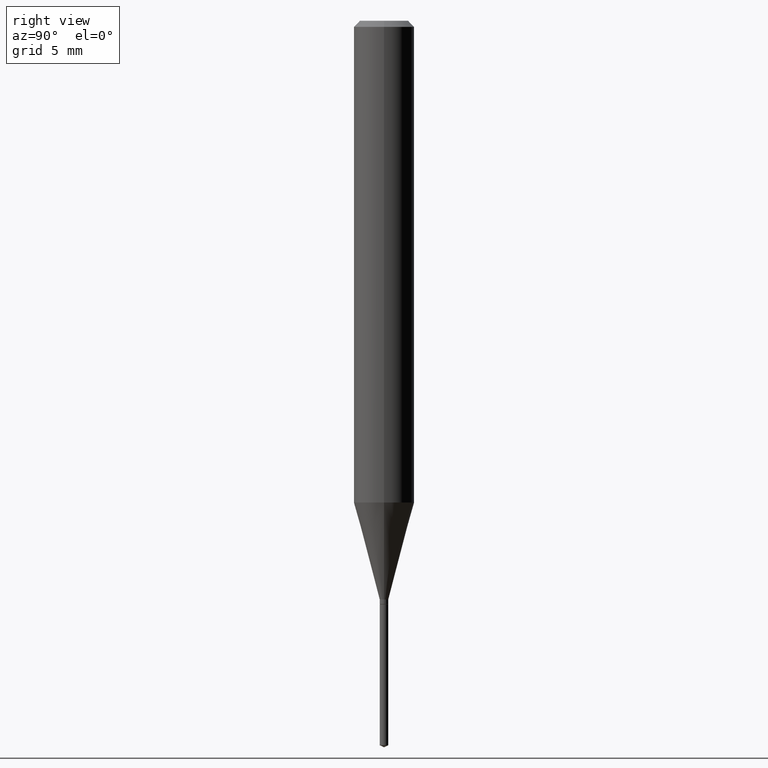
[diagram: clean part render]
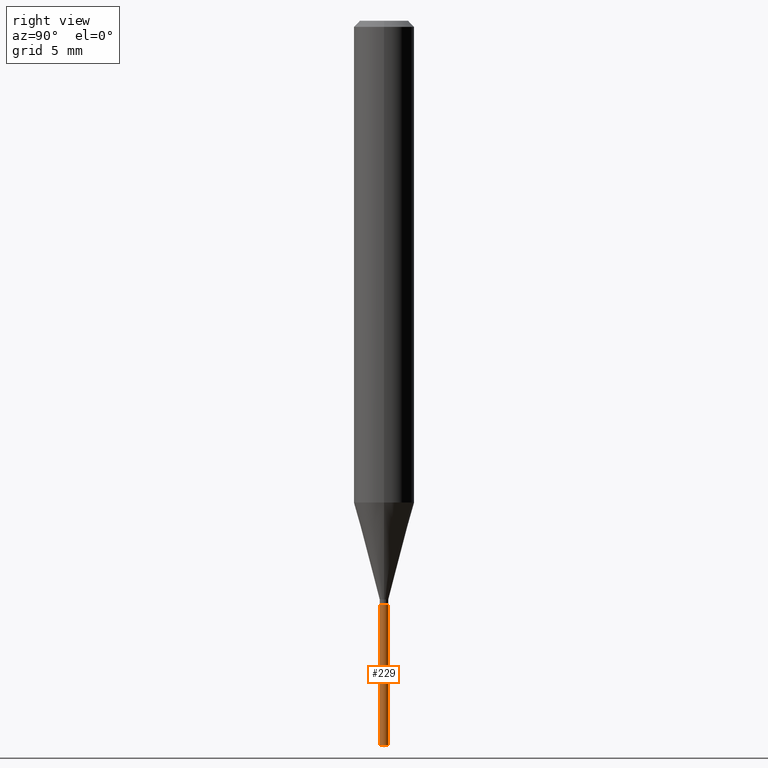
[diagram: same view with one face highlighted and labeled with its STEP entity id]
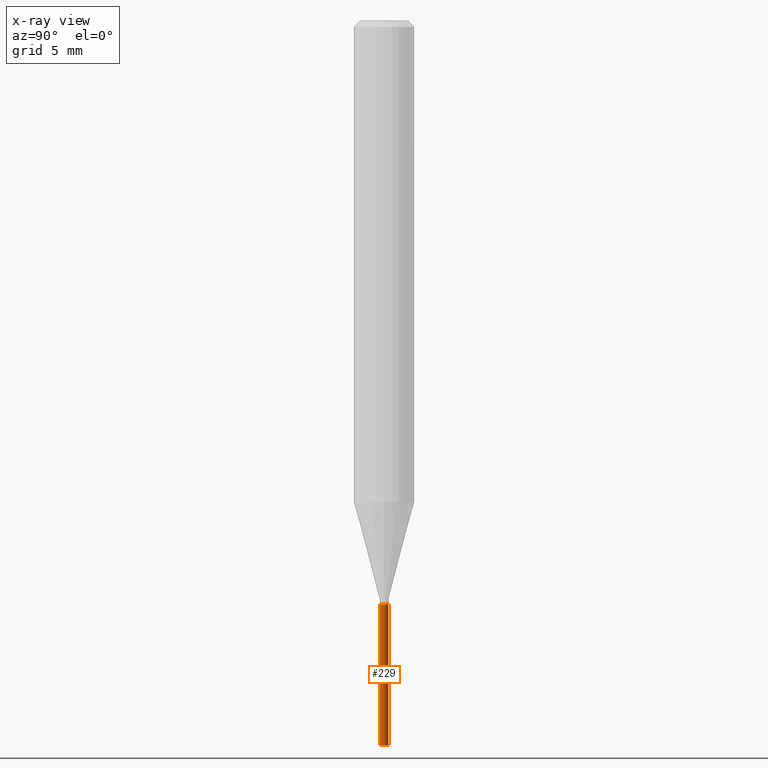
[diagram: x-ray of the same camera — body ghosted, the highlighted face saturated]
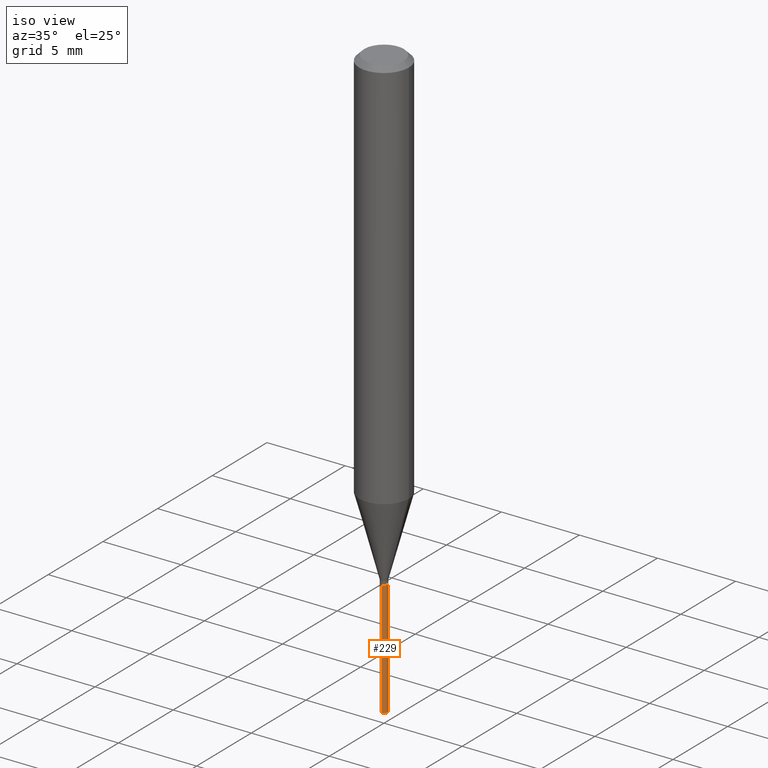
[diagram: same view with one face highlighted and labeled with its STEP entity id]
A machine part, right view. The second image highlights one B-rep face of the part: STEP entity #229.
The next image is the same camera in x-ray: the body ghosted, the highlighted face saturated — about 0% of this face is hidden behind the body in this view.
A second angle (iso view) of the same face is appended — the face is thin or edge-on in the first view.
In plain terms, the highlighted cylindrical surface (edge-blend (fillet) strip) has radius 0.2248 mm, axis along (-0, 0, 1).
Its self-contained STEP definition (entity closure, byte-faithful):
#13 = EDGE_CURVE ( 'NONE', #407, #225, #275, .T. ) ;
#39 = FACE_OUTER_BOUND ( 'NONE', #134, .T. ) ;
#50 = ORIENTED_EDGE ( 'NONE', *, *, #283, .F. ) ;
#61 = DIRECTION ( 'NONE',  ( -6.982962677686265133E-15, -1.000000000000000000, 0.000000000000000000 ) ) ;
#62 = VERTEX_POINT ( 'NONE', #146 ) ;
#96 = ORIENTED_EDGE ( 'NONE', *, *, #413, .F. ) ;
#99 = CIRCLE ( 'NONE', #373, 0.008850000000000000228 ) ;
#107 = DIRECTION ( 'NONE',  ( -2.442064184349959249E-29, 3.496356951090160448E-15, 1.000000000000000000 ) ) ;
#113 = CARTESIAN_POINT ( 'NONE',  ( -6.179921969748688623E-17, -0.008850000000005225215, -1.495873177225328865 ) ) ;
#121 = LINE ( 'NONE', #277, #244 ) ;
#124 = DIRECTION ( 'NONE',  ( -2.442064184349959249E-29, 3.496356951090160448E-15, 1.000000000000000000 ) ) ;
#134 = EDGE_LOOP ( 'NONE', ( #221, #333, #96, #50 ) ) ;
#137 = CARTESIAN_POINT ( 'NONE',  ( 6.288303211480542684E-17, 0.008849999999994775240, -1.495873177225328865 ) ) ;
#139 = EDGE_CURVE ( 'NONE', #225, #394, #223, .T. ) ;
#145 = CARTESIAN_POINT ( 'NONE',  ( 6.288303211480550080E-17, 0.008849999999995791788, -1.205000000000000071 ) ) ;
#146 = CARTESIAN_POINT ( 'NONE',  ( -6.179921969749398598E-17, -0.008850000000004206932, -1.205000000000000071 ) ) ;
#170 = AXIS2_PLACEMENT_3D ( 'NONE', #298, #107, #340 ) ;
#181 = CARTESIAN_POINT ( 'NONE',  ( 2.946789911453089913E-29, -4.207235013305990839E-15, -1.205000000000000071 ) ) ;
#214 = DIRECTION ( 'NONE',  ( -2.442064184349959249E-29, 3.496356951090160842E-15, 1.000000000000000000 ) ) ;
#221 = ORIENTED_EDGE ( 'NONE', *, *, #13, .T. ) ;
#222 = CARTESIAN_POINT ( 'NONE',  ( 2.946789911453089913E-29, -4.207235013305990839E-15, -1.205000000000000071 ) ) ;
#223 = LINE ( 'NONE', #421, #238 ) ;
#225 = VERTEX_POINT ( 'NONE', #137 ) ;
#229 = ADVANCED_FACE ( 'NONE', ( #39 ), #457, .T. ) ;
#238 = VECTOR ( 'NONE', #214, 39.37007874015748143 ) ;
#244 = VECTOR ( 'NONE', #346, 39.37007874015748143 ) ;
#250 = DIRECTION ( 'NONE',  ( -6.982962677686265133E-15, -1.000000000000000000, 0.000000000000000000 ) ) ;
#275 = CIRCLE ( 'NONE', #170, 0.008850000000000000228 ) ;
#277 = CARTESIAN_POINT ( 'NONE',  ( -6.179921969749398598E-17, -0.008850000000004206932, -1.205000000000000071 ) ) ;
#283 = EDGE_CURVE ( 'NONE', #407, #62, #121, .T. ) ;
#298 = CARTESIAN_POINT ( 'NONE',  ( 3.657120879743143126E-29, -5.224231468383448703E-15, -1.495873177225328865 ) ) ;
#333 = ORIENTED_EDGE ( 'NONE', *, *, #139, .T. ) ;
#339 = AXIS2_PLACEMENT_3D ( 'NONE', #222, #124, #250 ) ;
#340 = DIRECTION ( 'NONE',  ( -6.982962677686265922E-15, -1.000000000000000000, 0.000000000000000000 ) ) ;
#346 = DIRECTION ( 'NONE',  ( -2.442064184349959249E-29, 3.496356951090160842E-15, 1.000000000000000000 ) ) ;
#373 = AXIS2_PLACEMENT_3D ( 'NONE', #181, #406, #61 ) ;
#394 = VERTEX_POINT ( 'NONE', #145 ) ;
#406 = DIRECTION ( 'NONE',  ( -2.442064184349959249E-29, 3.496356951090160448E-15, 1.000000000000000000 ) ) ;
#407 = VERTEX_POINT ( 'NONE', #113 ) ;
#413 = EDGE_CURVE ( 'NONE', #62, #394, #99, .T. ) ;
#421 = CARTESIAN_POINT ( 'NONE',  ( 6.288303211479832709E-17, 0.008849999999995791788, -1.205000000000000071 ) ) ;
#457 = CYLINDRICAL_SURFACE ( 'NONE', #339, 0.008850000000000000228 ) ;